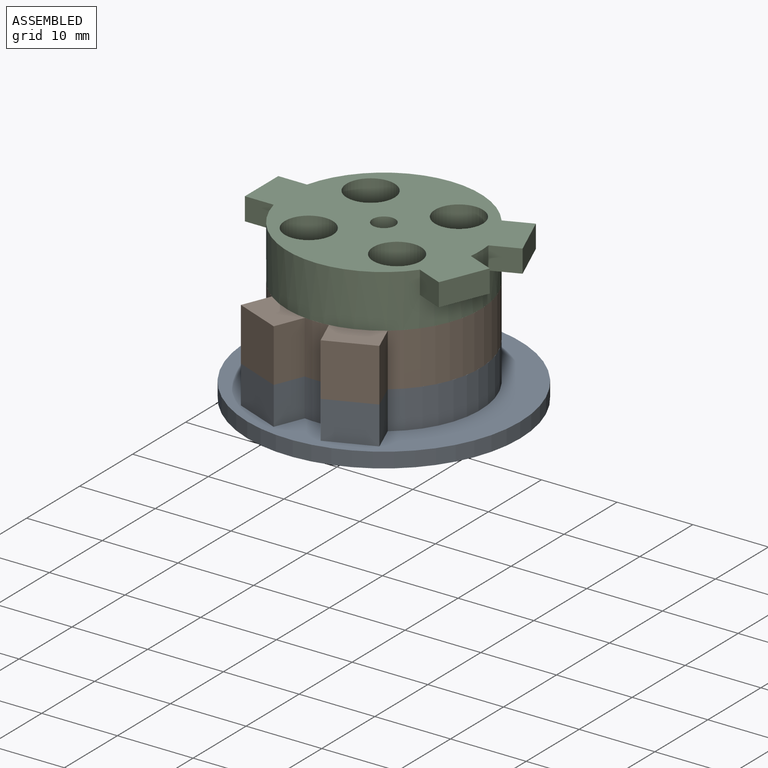
[diagram: assembled view]
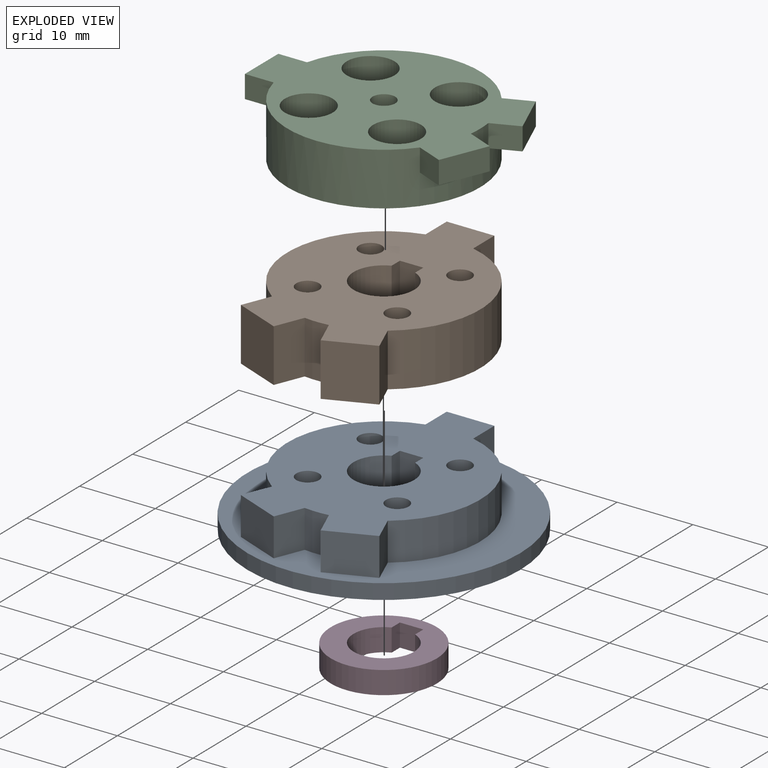
[diagram: exploded view]
GUIDED TOUR — MATED ASSEMBLY (Onshape document 59088b54f8260410cf572cf4, AutoMate assembly 59088b54f8260410cf572cf4_4f1862b03e2629816143de6e_e5caeecb7c7f553de1c5328b_default)

This assembly has 4 components, labeled P0..P3 below (a component is one placed occurrence of a part; the same part can appear more than once), held together by 3 mates. A mate is a constraint between two components; its type names the relative motion it leaves free:
  FASTENED — locks the two components together rigidly (no relative motion),
  REVOLUTE — leaves rotation about the listed axis free (a hinge).
Axis/direction vectors are unit vectors and 'through' points are millimeter coordinates, both in the assembly's world frame.

MATES
  1. REVOLUTE "Revolute 1": P2 <-> P1, axis (0.000, 0.000, -1.000) through (4.70, 9.29, 11.82) mm
  2. FASTENED "Fastened 1": P1 <-> P0, direction (0.000, 0.000, -1.000) through (3.15, 14.52, 4.82) mm
  3. FASTENED "Fastened 2": P3 <-> P0, direction (0.000, 0.000, 1.000) through (4.70, 9.29, -2.18) mm

ASSEMBLY ORDER
  1. P1 — the base component [order verified]
  2. P2 [order verified]
  3. P0 [order verified]
  4. P3 [order verified]
Order-tag legend:
  [order verified] — this step's position reverses a verified removal order: the component was checked to insert without passing through the ones already placed.

Of the 4 components, 4 carry the full construction recipe — the FeatureScript program that regenerates the part's solid from scratch; the rest are supplied as boundary geometry only.
Each toured component is shown spotlighted twice — in the assembled view, then in the exploded view, where a leader line traces a displaced component back to its assembled socket (saturated green if recipe-attached, orange if geometry-only; every other component desaturated gray) — followed by its recipe or geometry summary and the mates that hold it.
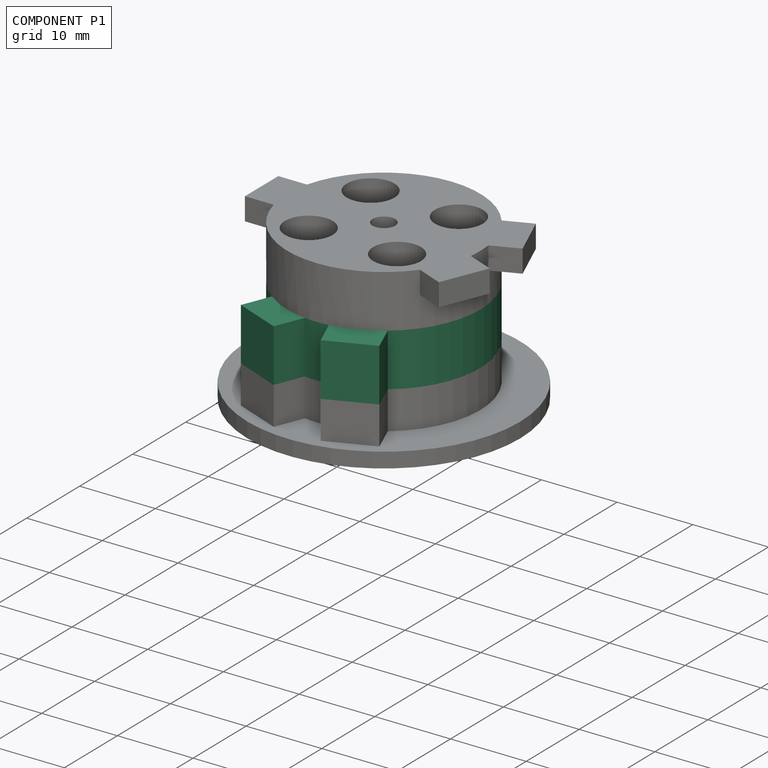
[diagram: component P1 — assembled]
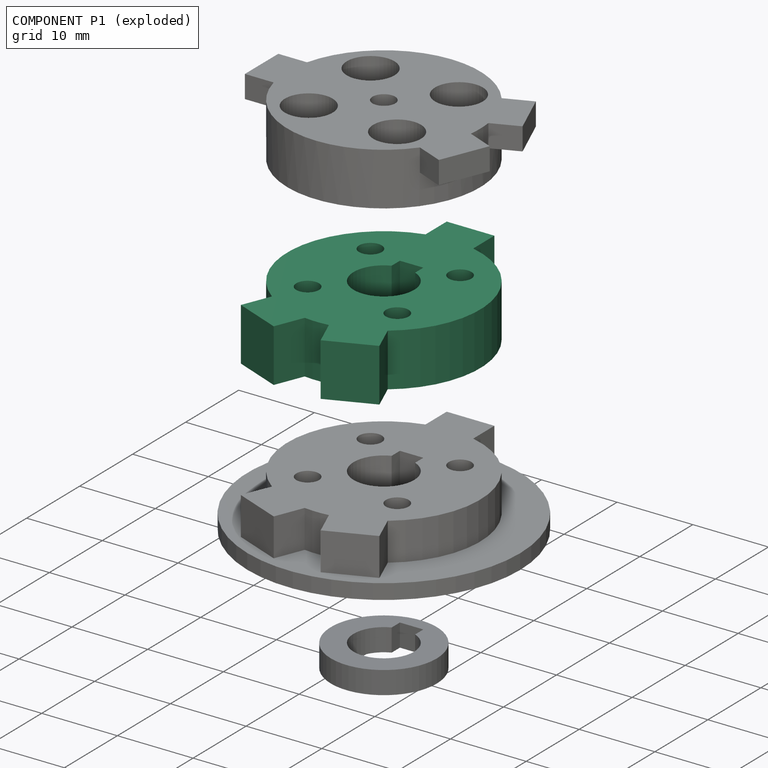
[diagram: component P1 — exploded]
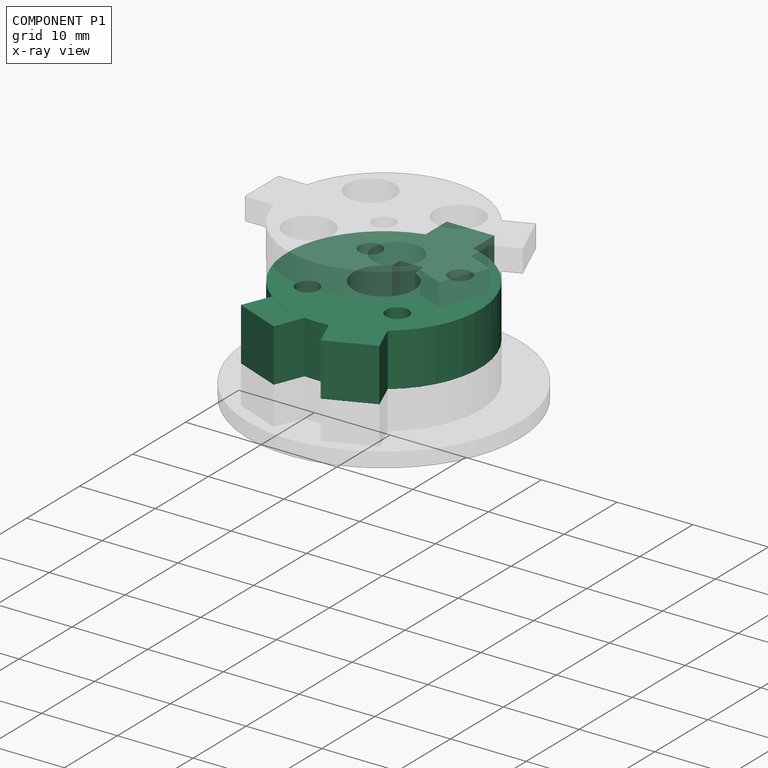
[diagram: component P1 — x-ray view]
COMPONENT P1 — recipe-attached (CADFS 00761605, mesh-verified: the recipe's output STEP matches this component's geometry to below the mesh-comparison resolution (tessellation chordal tolerance ~0.0631 mm)).
Held by: REVOLUTE mate "Revolute 1" to P2; FASTENED mate "Fastened 1" to P0.
Construction recipe (FeatureScript — the CAD program that rebuilds this solid; sketch coordinates are in the units given by the * unit suffixes, e.g. mm):

FeatureScript 1511;
import(path : "onshape/std/geometry.fs", version : "1511.0");
import(path : "onshape/std/common.fs", version : "1511.0");
const mm = millimeter;
const VERTEX = EntityType.VERTEX;
const EDGE = EntityType.EDGE;
const FACE = EntityType.FACE;
const BODY = EntityType.BODY;
function v(x, y){return vector(x, y);}
function OD(order){return orderDisambiguation(order);}
function OSD(set){return originalSetDisambiguation(set);}
function TD(topology){return topologyDisambiguation(topology);}
function TDD(query){return trueDependencyDisambiguation(query);}
function sQuery(a, b, c) {return sketchEntityQuery(a, b, c);}

annotation { "Feature Type Name" : "Feature", "Feature Type Description" : "" }
export const myFeature = defineFeature(function(context is Context, id is Id, definition is map)
    precondition{}
    {
        {
            var Q0;
            Q0=qCreatedBy(makeId("Top.planeOp"),FACE);
            var sketch = newSketch(context, id + "F0", { "sketchPlane" : qUnion([Q0])});
            skArc(sketch, "E0", {"start": v(7.65, -10.2) * mm, "mid": v(12.5, 2.5) * mm, "end": v(3.15, 12.35) * mm});
            skLineSegment(sketch, "E1", {"start": v(0, 12.75) * mm, "end": v(0, -12.75) * mm, "construction": true});
            skLineSegment(sketch, "E2", {"start": v(-3.15, 16.35) * mm, "end": v(0, 16.35) * mm});
            skLineSegment(sketch, "E3", {"start": v(0, 16.35) * mm, "end": v(3.15, 16.35) * mm});
            skLineSegment(sketch, "E4", {"start": v(-3.15, 16.35) * mm, "end": v(-3.15, 12.35) * mm});
            skLineSegment(sketch, "E5", {"start": v(3.15, 16.35) * mm, "end": v(3.15, 12.35) * mm});
            skLineSegment(sketch, "E6", {"start": v(1.6, -12.65) * mm, "end": v(7.65, -10.2) * mm, "construction": true});
            skLineSegment(sketch, "E7", {"start": v(1.6, -12.65) * mm, "end": v(3.1, -16.36) * mm});
            skLineSegment(sketch, "E8", {"start": v(7.65, -10.2) * mm, "end": v(9.15, -13.9) * mm});
            skLineSegment(sketch, "E9", {"start": v(3.1, -16.36) * mm, "end": v(9.15, -13.9) * mm});
            skLineSegment(sketch, "E10.MirrorCS", {"start": v(-1.6, -12.65) * mm, "end": v(-3.1, -16.36) * mm});
            skLineSegment(sketch, "E11.MirrorCS", {"start": v(-3.1, -16.36) * mm, "end": v(-9.15, -13.9) * mm});
            skLineSegment(sketch, "E12.MirrorCS", {"start": v(-7.65, -10.2) * mm, "end": v(-9.15, -13.9) * mm});
            skArc(sketch, "E13.trimOffspring", {"start": v(-1.6, -12.65) * mm, "mid": v(0, -12.75) * mm, "end": v(1.6, -12.65) * mm});
            skArc(sketch, "E14.trimOffspring", {"start": v(-3.15, 12.35) * mm, "mid": v(-12.5, 2.5) * mm, "end": v(-7.65, -10.2) * mm});
            skLineSegment(sketch, "E15", {"start": v(-1.6, -12.65) * mm, "end": v(1.6, -12.65) * mm, "construction": true});
            skLineSegment(sketch, "E16", {"start": v(-3.1, -16.36) * mm, "end": v(3.1, -16.36) * mm, "construction": true});
            skLineSegment(sketch, "E17", {"start": v(-9.15, -13.9) * mm, "end": v(9.15, -13.9) * mm, "construction": true});
            skLineSegment(sketch, "E18", {"start": v(-7.65, -10.2) * mm, "end": v(7.65, -10.2) * mm, "construction": true});
            skSolve(sketch);
        }
        {
            var Q0;
            Q0 = qSketchRegion(id + "F0", true);
            extrude(context, id + "F1", {"entities" : qUnion([Q0]), "depth" : 7 * mm, "offsetDistance" : 25 * mm});
        }
        {
            var Q0;
            Q0=makeQuery(id+"F1.opExtrude","CAP_FACE",FACE,{"disambiguationData":[OSD([sQuery(id+"F0.wireOp",EDGE,"E0"),sQuery(id+"F0.wireOp",EDGE,"E2"),sQuery(id+"F0.wireOp",EDGE,"E3"),sQuery(id+"F0.wireOp",EDGE,"E4"),sQuery(id+"F0.wireOp",EDGE,"E5"),sQuery(id+"F0.wireOp",EDGE,"E7"),sQuery(id+"F0.wireOp",EDGE,"E8"),sQuery(id+"F0.wireOp",EDGE,"E9"),sQuery(id+"F0.wireOp",EDGE,"E10.MirrorCS"),sQuery(id+"F0.wireOp",EDGE,"E11.MirrorCS"),sQuery(id+"F0.wireOp",EDGE,"E12.MirrorCS"),sQuery(id+"F0.wireOp",EDGE,"E13.trimOffspring"),sQuery(id+"F0.wireOp",EDGE,"E14.trimOffspring")])],"isStart":false});
            var sketch = newSketch(context, id + "F2", { "sketchPlane" : qUnion([Q0])});
            skArc(sketch, "E19", {"start": v(-1.55, 3.69) * mm, "mid": v(0, -4) * mm, "end": v(1.55, 3.69) * mm});
            skLineSegment(sketch, "E20", {"start": v(0, 4) * mm, "end": v(0, 5.24) * mm, "construction": true});
            skLineSegment(sketch, "E21", {"start": v(0, 5.24) * mm, "end": v(1.55, 5.24) * mm});
            skLineSegment(sketch, "E22", {"start": v(0, 5.24) * mm, "end": v(-1.55, 5.24) * mm});
            skLineSegment(sketch, "E23", {"start": v(1.55, 5.24) * mm, "end": v(1.55, 3.69) * mm});
            skLineSegment(sketch, "E24", {"start": v(-1.55, 5.24) * mm, "end": v(-1.55, 3.69) * mm});
            skLineSegment(sketch, "E25", {"start": v(-12.75, 0) * mm, "end": v(0, 0) * mm, "construction": true});
            skLineSegment(sketch, "E26", {"start": v(0, 0) * mm, "end": v(-2.83, 2.83) * mm, "construction": true});
            skLineSegment(sketch, "E27", {"start": v(0, 0) * mm, "end": v(8.84, -8.84) * mm, "construction": true});
            skLineSegment(sketch, "E28.MirrorCS", {"start": v(0, 0) * mm, "end": v(8.84, 8.84) * mm, "construction": true});
            skLineSegment(sketch, "E29.MirrorCS", {"start": v(0, 0) * mm, "end": v(-9.02, -9.02) * mm, "construction": true});
            skCircle(sketch, "E30", {"center": v(-5.92, 5.92) * mm, "radius": 1.5 * mm});
            skCircle(sketch, "E31.1.0", {"center": v(-5.92, -5.92) * mm, "radius": 1.5 * mm});
            skCircle(sketch, "E31.2.0", {"center": v(5.92, -5.92) * mm, "radius": 1.5 * mm});
            skCircle(sketch, "E31.3.0", {"center": v(5.92, 5.92) * mm, "radius": 1.5 * mm});
            skLineSegment(sketch, "E32", {"start": v(-2.83, 2.83) * mm, "end": v(-9.02, 9.02) * mm, "construction": true});
            skSolve(sketch);
        }
        {
            var Q0;
            Q0 = qSketchRegion(id + "F2", true);
            var Q1;
            Q1=makeQuery(id+"F1.opExtrude","CAP_FACE",FACE,{"disambiguationData":[OSD([sQuery(id+"F0.wireOp",EDGE,"E0"),sQuery(id+"F0.wireOp",EDGE,"E2"),sQuery(id+"F0.wireOp",EDGE,"E3"),sQuery(id+"F0.wireOp",EDGE,"E4"),sQuery(id+"F0.wireOp",EDGE,"E5"),sQuery(id+"F0.wireOp",EDGE,"E7"),sQuery(id+"F0.wireOp",EDGE,"E8"),sQuery(id+"F0.wireOp",EDGE,"E9"),sQuery(id+"F0.wireOp",EDGE,"E10.MirrorCS"),sQuery(id+"F0.wireOp",EDGE,"E11.MirrorCS"),sQuery(id+"F0.wireOp",EDGE,"E12.MirrorCS"),sQuery(id+"F0.wireOp",EDGE,"E13.trimOffspring"),sQuery(id+"F0.wireOp",EDGE,"E14.trimOffspring")])],"isStart":true});
            extrude(context, id + "F3", {"entities" : qUnion([Q0]), "operationType" : NewBodyOperationType.REMOVE, "endBound" : BoundingType.UP_TO_SURFACE, "oppositeDirection" : true, "depth" : 25 * mm, "endBoundEntityFace" : qUnion([Q1]), "offsetDistance" : 25 * mm});
        }
    });
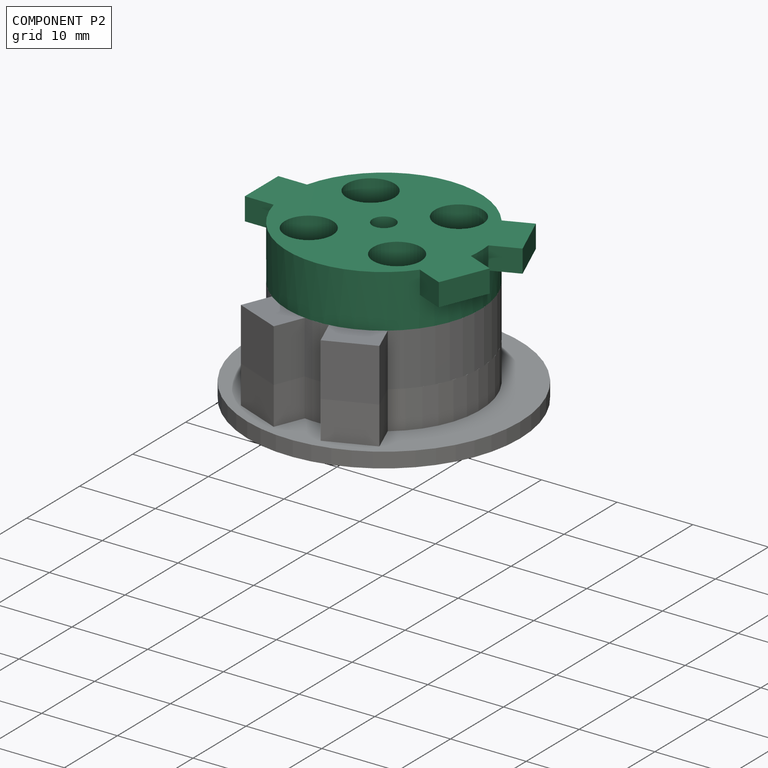
[diagram: component P2 — assembled]
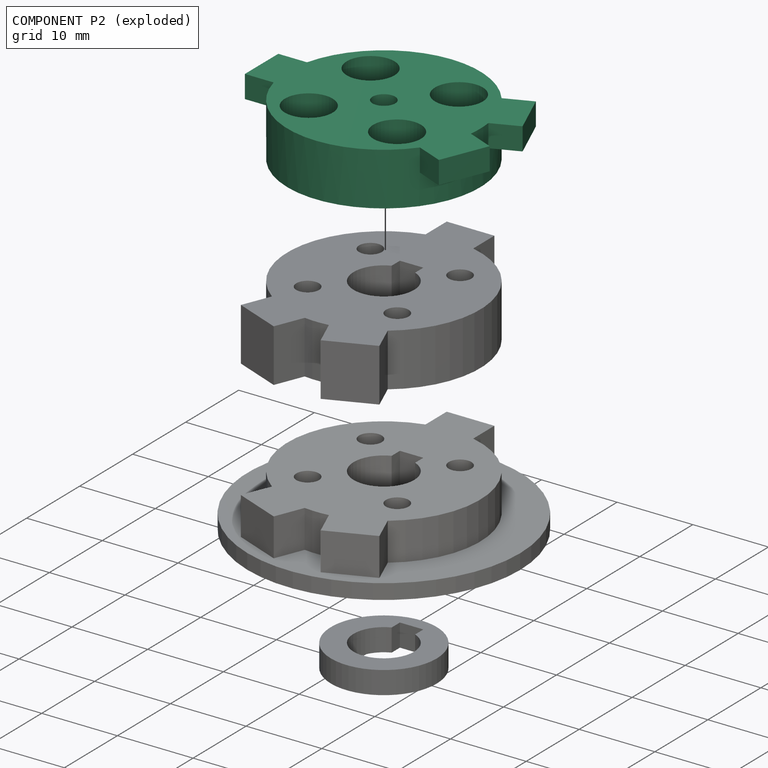
[diagram: component P2 — exploded]
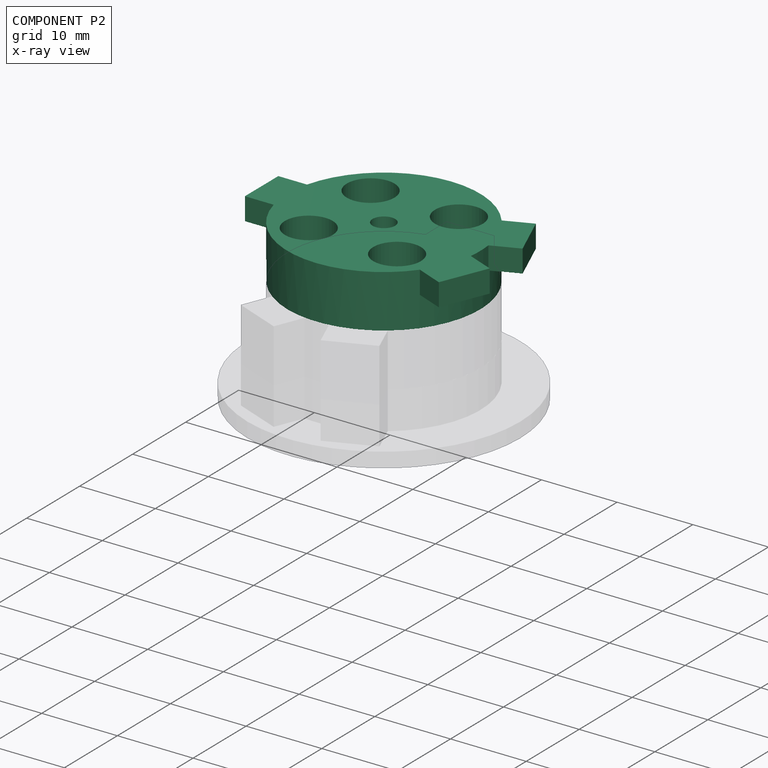
[diagram: component P2 — x-ray view]
COMPONENT P2 — recipe-attached (CADFS 00761606, mesh-verified: the recipe's output STEP matches this component's geometry to below the mesh-comparison resolution (tessellation chordal tolerance ~0.0626 mm)).
Held by: REVOLUTE mate "Revolute 1" to P1.
Construction recipe (FeatureScript — the CAD program that rebuilds this solid; sketch coordinates are in the units given by the * unit suffixes, e.g. mm):

FeatureScript 1511;
import(path : "onshape/std/geometry.fs", version : "1511.0");
import(path : "onshape/std/common.fs", version : "1511.0");
const mm = millimeter;
const VERTEX = EntityType.VERTEX;
const EDGE = EntityType.EDGE;
const FACE = EntityType.FACE;
const BODY = EntityType.BODY;
function v(x, y){return vector(x, y);}
function OD(order){return orderDisambiguation(order);}
function OSD(set){return originalSetDisambiguation(set);}
function TD(topology){return topologyDisambiguation(topology);}
function TDD(query){return trueDependencyDisambiguation(query);}
function sQuery(a, b, c) {return sketchEntityQuery(a, b, c);}

annotation { "Feature Type Name" : "Feature", "Feature Type Description" : "" }
export const myFeature = defineFeature(function(context is Context, id is Id, definition is map)
    precondition{}
    {
        {
            var Q0;
            Q0=qCreatedBy(makeId("Top.planeOp"),FACE);
            var sketch = newSketch(context, id + "F0", { "sketchPlane" : qUnion([Q0])});
            skArc(sketch, "E0", {"start": v(7.7, -10.16) * mm, "mid": v(12.5, 2.53) * mm, "end": v(3.15, 12.35) * mm});
            skLineSegment(sketch, "E1", {"start": v(0, 12.75) * mm, "end": v(0, -12.75) * mm, "construction": true});
            skLineSegment(sketch, "E2", {"start": v(-3.15, 16.15) * mm, "end": v(0, 16.15) * mm});
            skLineSegment(sketch, "E3", {"start": v(0, 16.15) * mm, "end": v(3.15, 16.15) * mm});
            skLineSegment(sketch, "E4", {"start": v(-3.15, 16.15) * mm, "end": v(-3.15, 12.35) * mm});
            skLineSegment(sketch, "E5", {"start": v(3.15, 16.15) * mm, "end": v(3.15, 12.35) * mm});
            skLineSegment(sketch, "E6", {"start": v(1.66, -12.64) * mm, "end": v(7.7, -10.16) * mm, "construction": true});
            skLineSegment(sketch, "E7", {"start": v(1.66, -12.64) * mm, "end": v(3.1, -16.16) * mm});
            skLineSegment(sketch, "E8", {"start": v(7.7, -10.16) * mm, "end": v(9.15, -13.67) * mm});
            skLineSegment(sketch, "E9", {"start": v(3.1, -16.16) * mm, "end": v(9.15, -13.67) * mm});
            skLineSegment(sketch, "E10.MirrorCS", {"start": v(-1.66, -12.64) * mm, "end": v(-3.1, -16.16) * mm});
            skLineSegment(sketch, "E11.MirrorCS", {"start": v(-3.1, -16.16) * mm, "end": v(-9.15, -13.67) * mm});
            skLineSegment(sketch, "E12.MirrorCS", {"start": v(-7.7, -10.16) * mm, "end": v(-9.15, -13.67) * mm});
            skArc(sketch, "E13.trimOffspring", {"start": v(-1.66, -12.64) * mm, "mid": v(0, -12.75) * mm, "end": v(1.66, -12.64) * mm});
            skArc(sketch, "E14.trimOffspring", {"start": v(-3.15, 12.35) * mm, "mid": v(-12.5, 2.53) * mm, "end": v(-7.7, -10.16) * mm});
            skLineSegment(sketch, "E15", {"start": v(-1.66, -12.64) * mm, "end": v(1.66, -12.64) * mm, "construction": true});
            skLineSegment(sketch, "E16", {"start": v(-3.1, -16.16) * mm, "end": v(3.1, -16.16) * mm, "construction": true});
            skLineSegment(sketch, "E17", {"start": v(-9.15, -13.67) * mm, "end": v(9.15, -13.67) * mm, "construction": true});
            skLineSegment(sketch, "E18", {"start": v(-7.7, -10.16) * mm, "end": v(7.7, -10.16) * mm, "construction": true});
            skSolve(sketch);
        }
        {
            var Q0;
            Q0=qSketchRegion(id+"F0",true);
            extrude(context, id + "F1", {"entities" : qUnion([Q0]), "depth" : 3 * mm, "offsetDistance" : 25 * mm});
        }
        {
            var Q0;
            Q0=makeQuery(id+"F1.opExtrude","CAP_FACE",FACE,{"disambiguationData":[OSD([sQuery(id+"F0.wireOp",EDGE,"E0"),sQuery(id+"F0.wireOp",EDGE,"E2"),sQuery(id+"F0.wireOp",EDGE,"E3"),sQuery(id+"F0.wireOp",EDGE,"E4"),sQuery(id+"F0.wireOp",EDGE,"E5"),sQuery(id+"F0.wireOp",EDGE,"E7"),sQuery(id+"F0.wireOp",EDGE,"E8"),sQuery(id+"F0.wireOp",EDGE,"E9"),sQuery(id+"F0.wireOp",EDGE,"E10.MirrorCS"),sQuery(id+"F0.wireOp",EDGE,"E11.MirrorCS"),sQuery(id+"F0.wireOp",EDGE,"E12.MirrorCS"),sQuery(id+"F0.wireOp",EDGE,"E13.trimOffspring"),sQuery(id+"F0.wireOp",EDGE,"E14.trimOffspring")])],"isStart":true});
            var sketch = newSketch(context, id + "F2", { "sketchPlane" : qUnion([Q0])});
            skCircle(sketch, "E19", {"center": v(0, 0) * mm, "radius": 12.75 * mm});
            skSolve(sketch);
        }
        {
            var Q0;
            Q0 = qSketchRegion(id + "F2", true);
            extrude(context, id + "F3", {"entities" : qUnion([Q0]), "operationType" : NewBodyOperationType.ADD, "depth" : 4 * mm, "offsetDistance" : 25 * mm});
        }
        {
            var Q0;
            Q0=makeQuery(id+"F1.opExtrude","CAP_FACE",FACE,{"disambiguationData":[OSD([sQuery(id+"F0.wireOp",EDGE,"E0"),sQuery(id+"F0.wireOp",EDGE,"E2"),sQuery(id+"F0.wireOp",EDGE,"E3"),sQuery(id+"F0.wireOp",EDGE,"E4"),sQuery(id+"F0.wireOp",EDGE,"E5"),sQuery(id+"F0.wireOp",EDGE,"E7"),sQuery(id+"F0.wireOp",EDGE,"E8"),sQuery(id+"F0.wireOp",EDGE,"E9"),sQuery(id+"F0.wireOp",EDGE,"E10.MirrorCS"),sQuery(id+"F0.wireOp",EDGE,"E11.MirrorCS"),sQuery(id+"F0.wireOp",EDGE,"E12.MirrorCS"),sQuery(id+"F0.wireOp",EDGE,"E13.trimOffspring"),sQuery(id+"F0.wireOp",EDGE,"E14.trimOffspring")])],"isStart":false});
            var sketch = newSketch(context, id + "F4", { "sketchPlane" : qUnion([Q0])});
            skLineSegment(sketch, "E20", {"start": v(-12.75, 0) * mm, "end": v(0, 0) * mm, "construction": true});
            skLineSegment(sketch, "E21", {"start": v(0, 0) * mm, "end": v(-2.65, 2.65) * mm, "construction": true});
            skLineSegment(sketch, "E22", {"start": v(0, 0) * mm, "end": v(9.02, -9.02) * mm, "construction": true});
            skLineSegment(sketch, "E23.MirrorCS", {"start": v(0, 0) * mm, "end": v(9.02, 9.02) * mm, "construction": true});
            skLineSegment(sketch, "E24.MirrorCS", {"start": v(0, 0) * mm, "end": v(-9.02, -9.02) * mm, "construction": true});
            skCircle(sketch, "E25", {"center": v(-5.83, 5.83) * mm, "radius": 3.15 * mm});
            skCircle(sketch, "E26.1.0", {"center": v(-5.83, -5.83) * mm, "radius": 3.15 * mm});
            skCircle(sketch, "E26.2.0", {"center": v(5.83, -5.83) * mm, "radius": 3.15 * mm});
            skCircle(sketch, "E26.3.0", {"center": v(5.83, 5.83) * mm, "radius": 3.15 * mm});
            skLineSegment(sketch, "E27", {"start": v(-2.65, 2.65) * mm, "end": v(-9.02, 9.02) * mm, "construction": true});
            skCircle(sketch, "E28", {"center": v(0, 0) * mm, "radius": 1.5 * mm});
            skSolve(sketch);
        }
        {
            var Q0;
            Q0=qSketchRegion(id+"F4",true);
            var Q1;
            Q1=makeQuery(id+"F1.opExtrude","CAP_FACE",FACE,{"disambiguationData":[OSD([sQuery(id+"F0.wireOp",EDGE,"E0"),sQuery(id+"F0.wireOp",EDGE,"E2"),sQuery(id+"F0.wireOp",EDGE,"E3"),sQuery(id+"F0.wireOp",EDGE,"E4"),sQuery(id+"F0.wireOp",EDGE,"E5"),sQuery(id+"F0.wireOp",EDGE,"E7"),sQuery(id+"F0.wireOp",EDGE,"E8"),sQuery(id+"F0.wireOp",EDGE,"E9"),sQuery(id+"F0.wireOp",EDGE,"E10.MirrorCS"),sQuery(id+"F0.wireOp",EDGE,"E11.MirrorCS"),sQuery(id+"F0.wireOp",EDGE,"E12.MirrorCS"),sQuery(id+"F0.wireOp",EDGE,"E13.trimOffspring"),sQuery(id+"F0.wireOp",EDGE,"E14.trimOffspring")])],"isStart":true});
            extrude(context, id + "F5", {"entities" : qUnion([Q0]), "operationType" : NewBodyOperationType.REMOVE, "oppositeDirection" : true, "depth" : 25 * mm, "endBoundEntityFace" : qUnion([Q1]), "offsetDistance" : 25 * mm});
        }
        {
            var Q0;
            Q0=makeQuery(id+"F3.opExtrude","CAP_FACE",FACE,{"disambiguationData":[OSD([sQuery(id+"F2.wireOp",EDGE,"E19")])],"isStart":false});
            var sketch = newSketch(context, id + "F6", { "sketchPlane" : qUnion([Q0])});
            skCircle(sketch, "E29", {"center": v(0, 0) * mm, "radius": 4.05 * mm});
            skSolve(sketch);
        }
        {
            var Q0;
            Q0 = qSketchRegion(id + "F6", true);
            extrude(context, id + "F7", {"entities" : qUnion([Q0]), "operationType" : NewBodyOperationType.REMOVE, "oppositeDirection" : true, "depth" : 5 * mm, "offsetDistance" : 25 * mm});
        }
    });
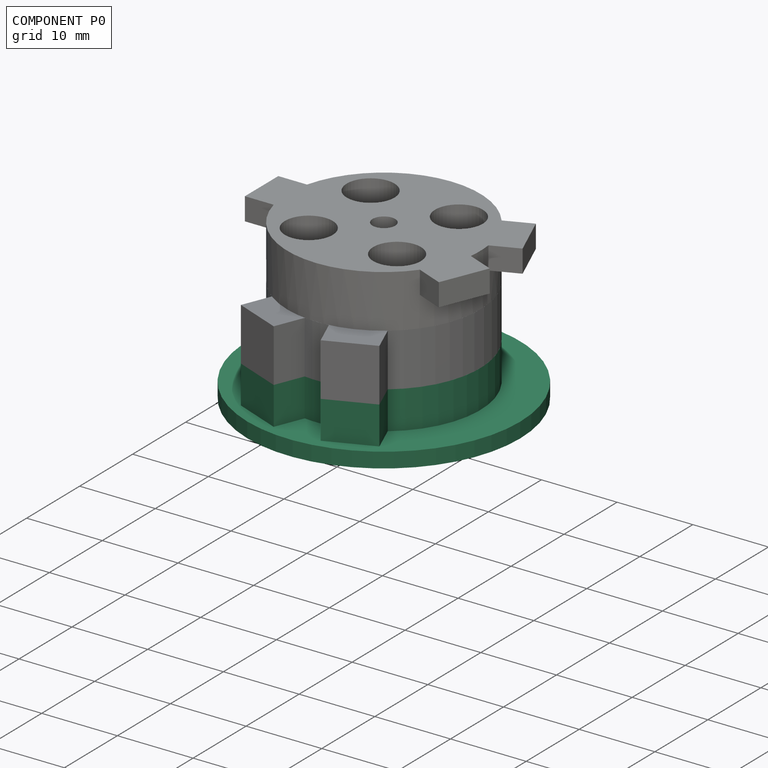
[diagram: component P0 — assembled]
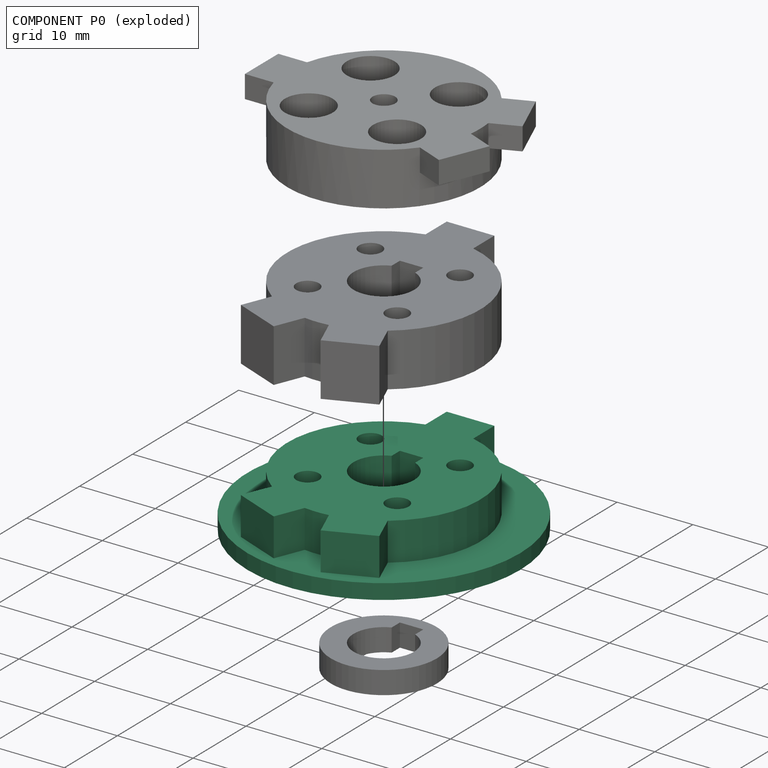
[diagram: component P0 — exploded]
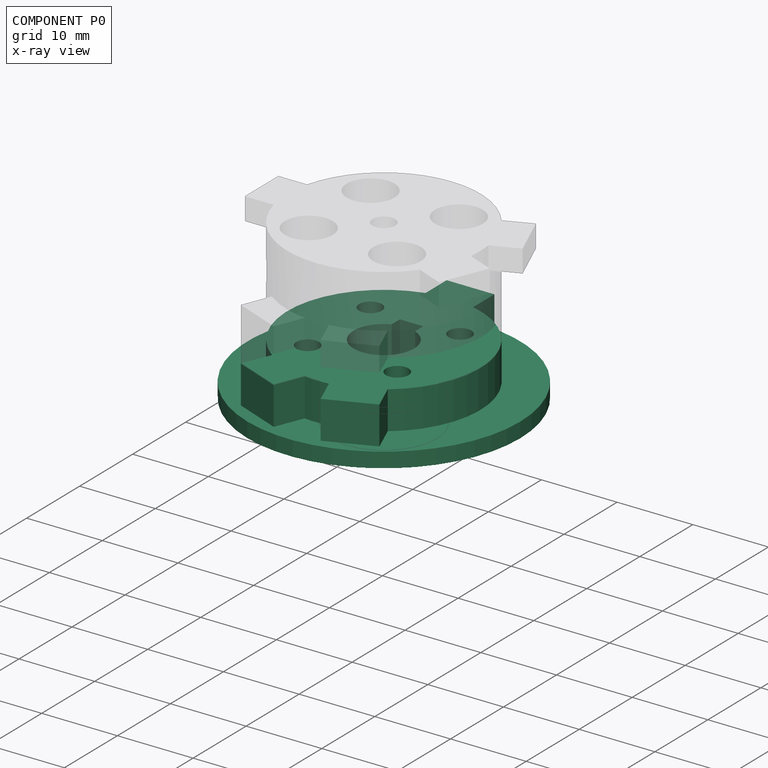
[diagram: component P0 — x-ray view]
COMPONENT P0 — recipe-attached (CADFS 00761607, mesh-verified: the recipe's output STEP matches this component's geometry to below the mesh-comparison resolution (tessellation chordal tolerance ~0.077 mm)).
Held by: FASTENED mate "Fastened 1" to P1; FASTENED mate "Fastened 2" to P3.
Construction recipe (FeatureScript — the CAD program that rebuilds this solid; sketch coordinates are in the units given by the * unit suffixes, e.g. mm):

FeatureScript 1511;
import(path : "onshape/std/geometry.fs", version : "1511.0");
import(path : "onshape/std/common.fs", version : "1511.0");
const mm = millimeter;
const VERTEX = EntityType.VERTEX;
const EDGE = EntityType.EDGE;
const FACE = EntityType.FACE;
const BODY = EntityType.BODY;
function v(x, y){return vector(x, y);}
function OD(order){return orderDisambiguation(order);}
function OSD(set){return originalSetDisambiguation(set);}
function TD(topology){return topologyDisambiguation(topology);}
function TDD(query){return trueDependencyDisambiguation(query);}
function sQuery(a, b, c) {return sketchEntityQuery(a, b, c);}

annotation { "Feature Type Name" : "Feature", "Feature Type Description" : "" }
export const myFeature = defineFeature(function(context is Context, id is Id, definition is map)
    precondition{}
    {
        {
            var Q0;
            Q0=qCreatedBy(makeId("Top.planeOp"),FACE);
            var sketch = newSketch(context, id + "F0", { "sketchPlane" : qUnion([Q0])});
            skArc(sketch, "E0", {"start": v(7.65, -10.2) * mm, "mid": v(12.5, 2.5) * mm, "end": v(3.15, 12.35) * mm});
            skLineSegment(sketch, "E1", {"start": v(0, 12.75) * mm, "end": v(0, -12.75) * mm, "construction": true});
            skLineSegment(sketch, "E2", {"start": v(-3.15, 16.35) * mm, "end": v(0, 16.35) * mm});
            skLineSegment(sketch, "E3", {"start": v(0, 16.35) * mm, "end": v(3.15, 16.35) * mm});
            skLineSegment(sketch, "E4", {"start": v(-3.15, 16.35) * mm, "end": v(-3.15, 12.35) * mm});
            skLineSegment(sketch, "E5", {"start": v(3.15, 16.35) * mm, "end": v(3.15, 12.35) * mm});
            skLineSegment(sketch, "E6", {"start": v(1.6, -12.65) * mm, "end": v(7.65, -10.2) * mm, "construction": true});
            skLineSegment(sketch, "E7", {"start": v(1.6, -12.65) * mm, "end": v(3.1, -16.36) * mm});
            skLineSegment(sketch, "E8", {"start": v(7.65, -10.2) * mm, "end": v(9.15, -13.9) * mm});
            skLineSegment(sketch, "E9", {"start": v(3.1, -16.36) * mm, "end": v(9.15, -13.9) * mm});
            skLineSegment(sketch, "E10.MirrorCS", {"start": v(-1.6, -12.65) * mm, "end": v(-3.1, -16.36) * mm});
            skLineSegment(sketch, "E11.MirrorCS", {"start": v(-3.1, -16.36) * mm, "end": v(-9.15, -13.9) * mm});
            skLineSegment(sketch, "E12.MirrorCS", {"start": v(-7.65, -10.2) * mm, "end": v(-9.15, -13.9) * mm});
            skArc(sketch, "E13.trimOffspring", {"start": v(-1.6, -12.65) * mm, "mid": v(0, -12.75) * mm, "end": v(1.6, -12.65) * mm});
            skArc(sketch, "E14.trimOffspring", {"start": v(-3.15, 12.35) * mm, "mid": v(-12.5, 2.5) * mm, "end": v(-7.65, -10.2) * mm});
            skLineSegment(sketch, "E15", {"start": v(-1.6, -12.65) * mm, "end": v(1.6, -12.65) * mm, "construction": true});
            skLineSegment(sketch, "E16", {"start": v(-3.1, -16.36) * mm, "end": v(3.1, -16.36) * mm, "construction": true});
            skLineSegment(sketch, "E17", {"start": v(-9.15, -13.9) * mm, "end": v(9.15, -13.9) * mm, "construction": true});
            skLineSegment(sketch, "E18", {"start": v(-7.65, -10.2) * mm, "end": v(7.65, -10.2) * mm, "construction": true});
            skSolve(sketch);
        }
        {
            var Q0;
            Q0=qSketchRegion(id+"F0",true);
            extrude(context, id + "F1", {"entities" : qUnion([Q0]), "depth" : 5 * mm, "offsetDistance" : 25 * mm});
        }
        {
            var Q0;
            Q0=makeQuery(id+"F1.opExtrude","CAP_FACE",FACE,{"disambiguationData":[OSD([sQuery(id+"F0.wireOp",EDGE,"E0"),sQuery(id+"F0.wireOp",EDGE,"E2"),sQuery(id+"F0.wireOp",EDGE,"E3"),sQuery(id+"F0.wireOp",EDGE,"E4"),sQuery(id+"F0.wireOp",EDGE,"E5"),sQuery(id+"F0.wireOp",EDGE,"E7"),sQuery(id+"F0.wireOp",EDGE,"E8"),sQuery(id+"F0.wireOp",EDGE,"E9"),sQuery(id+"F0.wireOp",EDGE,"E10.MirrorCS"),sQuery(id+"F0.wireOp",EDGE,"E11.MirrorCS"),sQuery(id+"F0.wireOp",EDGE,"E12.MirrorCS"),sQuery(id+"F0.wireOp",EDGE,"E13.trimOffspring"),sQuery(id+"F0.wireOp",EDGE,"E14.trimOffspring")])],"isStart":true});
            var sketch = newSketch(context, id + "F2", { "sketchPlane" : qUnion([Q0])});
            skCircle(sketch, "E19", {"center": v(0, 0) * mm, "radius": 18 * mm});
            skSolve(sketch);
        }
        {
            var Q0;
            Q0 = qSketchRegion(id + "F2", true);
            extrude(context, id + "F3", {"entities" : qUnion([Q0]), "operationType" : NewBodyOperationType.ADD, "depth" : 2 * mm, "offsetDistance" : 25 * mm});
        }
        {
            var Q0;
            Q0=makeQuery(id+"F1.opExtrude","CAP_FACE",FACE,{"disambiguationData":[OSD([sQuery(id+"F0.wireOp",EDGE,"E0"),sQuery(id+"F0.wireOp",EDGE,"E2"),sQuery(id+"F0.wireOp",EDGE,"E3"),sQuery(id+"F0.wireOp",EDGE,"E4"),sQuery(id+"F0.wireOp",EDGE,"E5"),sQuery(id+"F0.wireOp",EDGE,"E7"),sQuery(id+"F0.wireOp",EDGE,"E8"),sQuery(id+"F0.wireOp",EDGE,"E9"),sQuery(id+"F0.wireOp",EDGE,"E10.MirrorCS"),sQuery(id+"F0.wireOp",EDGE,"E11.MirrorCS"),sQuery(id+"F0.wireOp",EDGE,"E12.MirrorCS"),sQuery(id+"F0.wireOp",EDGE,"E13.trimOffspring"),sQuery(id+"F0.wireOp",EDGE,"E14.trimOffspring")])],"isStart":false});
            var sketch = newSketch(context, id + "F4", { "sketchPlane" : qUnion([Q0])});
            skArc(sketch, "E20", {"start": v(-1.55, 3.69) * mm, "mid": v(0, -4) * mm, "end": v(1.55, 3.69) * mm});
            skLineSegment(sketch, "E21", {"start": v(0, 4) * mm, "end": v(0, 5.24) * mm, "construction": true});
            skLineSegment(sketch, "E22", {"start": v(0, 5.24) * mm, "end": v(1.55, 5.24) * mm});
            skLineSegment(sketch, "E23", {"start": v(0, 5.24) * mm, "end": v(-1.55, 5.24) * mm});
            skLineSegment(sketch, "E24", {"start": v(1.55, 5.24) * mm, "end": v(1.55, 3.69) * mm});
            skLineSegment(sketch, "E25", {"start": v(-1.55, 5.24) * mm, "end": v(-1.55, 3.69) * mm});
            skLineSegment(sketch, "E26", {"start": v(-12.75, 0) * mm, "end": v(0, 0) * mm, "construction": true});
            skLineSegment(sketch, "E27", {"start": v(0, 0) * mm, "end": v(-2.83, 2.83) * mm, "construction": true});
            skLineSegment(sketch, "E28", {"start": v(0, 0) * mm, "end": v(8.84, -8.84) * mm, "construction": true});
            skLineSegment(sketch, "E29.MirrorCS", {"start": v(0, 0) * mm, "end": v(8.84, 8.84) * mm, "construction": true});
            skLineSegment(sketch, "E30.MirrorCS", {"start": v(0, 0) * mm, "end": v(-9.02, -9.02) * mm, "construction": true});
            skCircle(sketch, "E31", {"center": v(-5.92, 5.92) * mm, "radius": 1.5 * mm});
            skCircle(sketch, "E32.1.0", {"center": v(-5.92, -5.92) * mm, "radius": 1.5 * mm});
            skCircle(sketch, "E32.2.0", {"center": v(5.92, -5.92) * mm, "radius": 1.5 * mm});
            skCircle(sketch, "E32.3.0", {"center": v(5.92, 5.92) * mm, "radius": 1.5 * mm});
            skLineSegment(sketch, "E33", {"start": v(-2.83, 2.83) * mm, "end": v(-9.02, 9.02) * mm, "construction": true});
            skSolve(sketch);
        }
        {
            var Q0;
            Q0=qSketchRegion(id+"F4",true);
            var Q1;
            Q1=makeQuery(id+"F3.opExtrude","CAP_FACE",FACE,{"disambiguationData":[OSD([sQuery(id+"F2.wireOp",EDGE,"E19")])],"isStart":false});
            extrude(context, id + "F5", {"entities" : qUnion([Q0]), "operationType" : NewBodyOperationType.REMOVE, "endBound" : BoundingType.UP_TO_SURFACE, "oppositeDirection" : true, "depth" : 25 * mm, "endBoundEntityFace" : qUnion([Q1]), "offsetDistance" : 25 * mm});
        }
    });
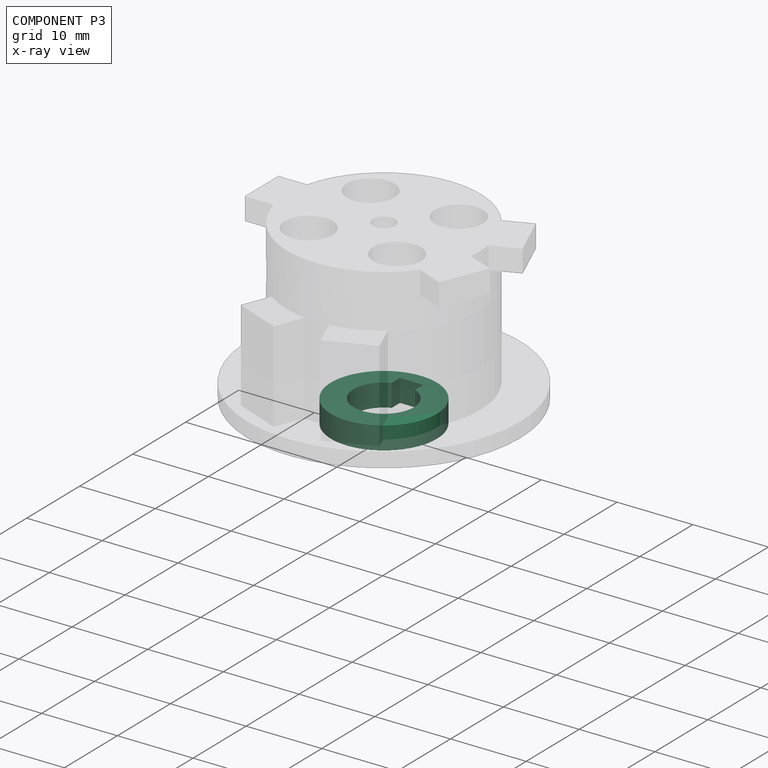
[diagram: component P3 — x-ray view]
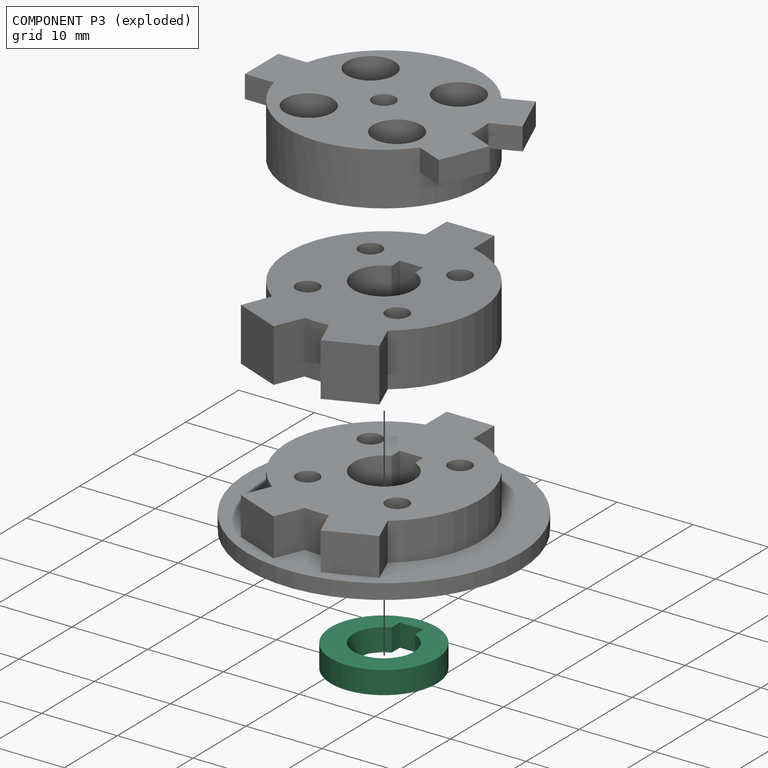
[diagram: component P3 — exploded]
COMPONENT P3 — recipe-attached (CADFS 00761611, mesh-verified: the recipe's output STEP matches this component's geometry to below the mesh-comparison resolution (tessellation chordal tolerance ~0.03 mm)).
Held by: FASTENED mate "Fastened 2" to P0.
Construction recipe (FeatureScript — the CAD program that rebuilds this solid; sketch coordinates are in the units given by the * unit suffixes, e.g. mm):

FeatureScript 1511;
import(path : "onshape/std/geometry.fs", version : "1511.0");
import(path : "onshape/std/common.fs", version : "1511.0");
const mm = millimeter;
const VERTEX = EntityType.VERTEX;
const EDGE = EntityType.EDGE;
const FACE = EntityType.FACE;
const BODY = EntityType.BODY;
function v(x, y){return vector(x, y);}
function OD(order){return orderDisambiguation(order);}
function OSD(set){return originalSetDisambiguation(set);}
function TD(topology){return topologyDisambiguation(topology);}
function TDD(query){return trueDependencyDisambiguation(query);}
function sQuery(a, b, c) {return sketchEntityQuery(a, b, c);}

annotation { "Feature Type Name" : "Feature", "Feature Type Description" : "" }
export const myFeature = defineFeature(function(context is Context, id is Id, definition is map)
    precondition{}
    {
        {
            var Q0;
            Q0=qCreatedBy(makeId("Top.planeOp"),FACE);
            var sketch = newSketch(context, id + "F0", { "sketchPlane" : qUnion([Q0])});
            skCircle(sketch, "E0", {"center": v(0, 0) * mm, "radius": 7 * mm});
            skSolve(sketch);
        }
        {
            var Q0;
            Q0 = qSketchRegion(id + "F0", true);
            extrude(context, id + "F1", {"entities" : qUnion([Q0]), "depth" : 3 * mm, "offsetDistance" : 25 * mm});
        }
        {
            var Q0;
            Q0=makeQuery(id+"F1.opExtrude","CAP_FACE",FACE,{"disambiguationData":[OSD([sQuery(id+"F0.wireOp",EDGE,"E0")])],"isStart":false});
            var sketch = newSketch(context, id + "F2", { "sketchPlane" : qUnion([Q0])});
            skCircle(sketch, "E1", {"center": v(0, 0) * mm, "radius": 4 * mm});
            skLineSegment(sketch, "E2", {"start": v(0, 4) * mm, "end": v(0, 5.24) * mm, "construction": true});
            skLineSegment(sketch, "E3", {"start": v(0, 5.24) * mm, "end": v(1.55, 5.24) * mm});
            skLineSegment(sketch, "E4", {"start": v(1.55, 5.24) * mm, "end": v(1.55, 3.69) * mm});
            skLineSegment(sketch, "E5.MirrorCS", {"start": v(0, 5.24) * mm, "end": v(-1.55, 5.24) * mm});
            skLineSegment(sketch, "E6.MirrorCS", {"start": v(-1.55, 5.24) * mm, "end": v(-1.55, 3.69) * mm});
            skSolve(sketch);
        }
        {
            var Q0;
            Q0 = qSketchRegion(id + "F2", true);
            var Q1;
            Q1=makeQuery(id+"F1.opExtrude","CAP_FACE",FACE,{"disambiguationData":[OSD([sQuery(id+"F0.wireOp",EDGE,"E0")])],"isStart":true});
            extrude(context, id + "F3", {"entities" : qUnion([Q0]), "operationType" : NewBodyOperationType.REMOVE, "endBound" : BoundingType.UP_TO_SURFACE, "oppositeDirection" : true, "depth" : 25 * mm, "endBoundEntityFace" : qUnion([Q1]), "offsetDistance" : 25 * mm});
        }
    });
PROVENANCE & LICENSES
Assembly (occurrences, transforms, mates, per-part STEP geometry): AutoMate dataset, Zenodo record 7776208, CC0.
Construction recipes: CADFS (HuggingFace VladPyatov/CADFS, CC-BY-4.0, layered over the ABC dataset), FeatureScript reconstruction programs keyed by ABC model id.
Join: ABC meta listings map ABC model id -> Onshape documentId; within a shared document, parts are matched by geometric signature (bounding-box dims + volume at 0.1% relative tolerance, exact B-rep face/solid counts).
Verification: 4 of this assembly's 4 components carry a recipe attachment, and every attachment is mesh-verified: the CADFS STEP and the AutoMate member STEP were compared as meshes in their shared local frame (symmetric sampled-point-to-mesh distance); worst across the 4 attachments: below the mesh-comparison resolution (tessellation chordal tolerance ~0.077 mm) on a 51 mm part.
Renders: orthographic iso camera (az 35 / el 25); the floor grid conveys scale (grid pitch printed in each image; no ruler). In the exploded view each component is displaced by its stored offset vector: the offsets alone carry the explosion direction (mate normal/axis signs are not orientation cues and do not encode it), and separation distances are assigned per mate-chain, not proportionally to assembly-order depth.
